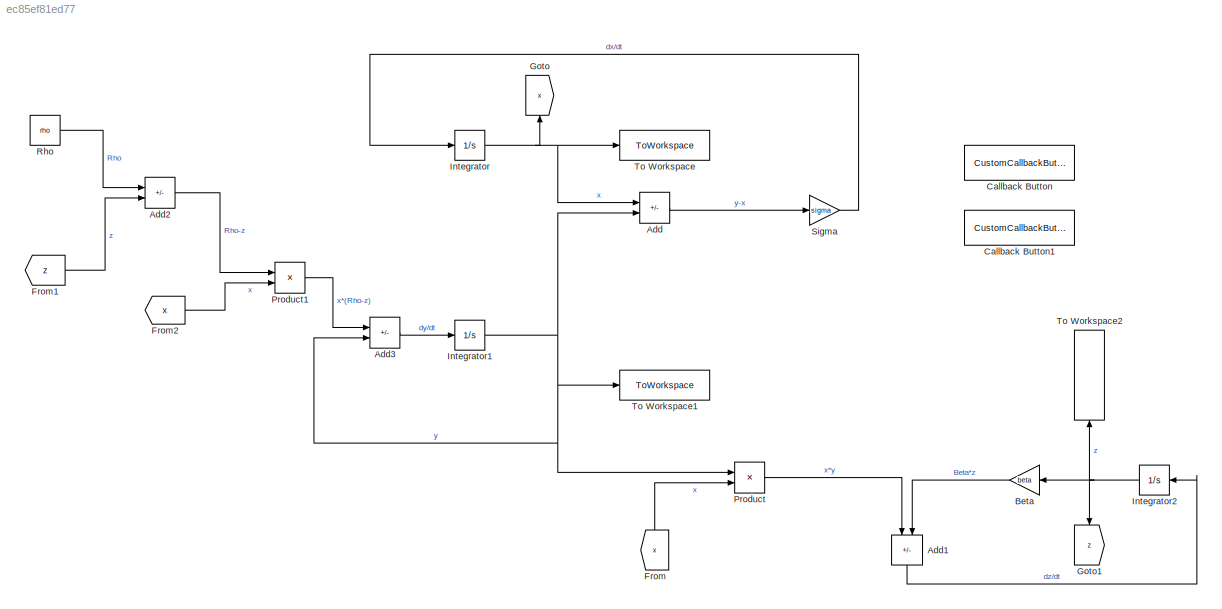
MODEL slx_ec85ef81ed77
KIND model
CONFIG AbsTol = auto
CONFIG EnableMultiTasking = off
CONFIG FixedStep = auto
CONFIG MaxStep = auto
CONFIG MinStep = auto
CONFIG RelTol = 1e-3
CONFIG SampleTimeConstraint = Unconstrained
CONFIG SolverName = VariableStepAuto
CONFIG StartTime = 0.0
CONFIG StopTime = 50
WORKSPACE source: MATLAB code (in-file)
WORKSPACE sigma = 10
WORKSPACE rho = 28
WORKSPACE beta = 8/3  (= 2.66666666667)
WORKSPACE x0 = [1,1.000001]
WORKSPACE y0 = [1,1]
WORKSPACE z0 = [1,1]
BLOCK [Sum] Add
  IconShape = rectangular
  Inputs = -+
BLOCK [Sum] Add1
  IconShape = rectangular
  Inputs = +-
  NameLocation = left
BLOCK [Sum] Add2
  IconShape = rectangular
  Inputs = +-
BLOCK [Sum] Add3
  IconShape = rectangular
  Inputs = +-
BLOCK [Gain] Beta
  Gain = beta
  NameLocation = top
BLOCK [CustomCallbackButton] Callback Button
  Configuration = {"components":[{"name":"BackgroundImageComponent","settings":{"image":{"size":[0,0],"src":"default","srcOrientation":"Right"},"position":[0,0,1,1]}},{"name":"ButtonStateComponent","settings":{"buttonType":"momentary","clickFcn":"x = out.x;\ny = out.y;\nz = out.z;\nplot3(x,y,z,LineWidth=1.5)\nxlabel('x')\nylabel('y')\nzlabel('z')","onValue":1,"position":[0,0,1,1],"pressDelay":"500","pressFcn":"","r...<+2152ch>
  CustomBackgroundColor = {"color":[0.9568627451,0.9568627451,0.9568627451],"show":true}
BLOCK [CustomCallbackButton] Callback Button1
  Configuration = {"components":[{"name":"BackgroundImageComponent","settings":{"image":{"size":[0,0],"src":"default","srcOrientation":"Right"},"position":[0,0,1,1]}},{"name":"ButtonStateComponent","settings":{"buttonType":"momentary","clickFcn":"t = linspace(0,50,length(out.x));\nplot(t,x,LineWidth=2)\nxlabel('Time (s)')\nylabel('x')\ngrid on","onValue":1,"position":[0,0,1,1],"pressDelay":"500","pressFcn":"","repe...<+2121ch>
  CustomBackgroundColor = {"color":[0.9568627451,0.9568627451,0.9568627451],"show":true}
BLOCK [From] From
  GotoTag = x
  NameLocation = right
BLOCK [From] From1
  GotoTag = z
BLOCK [From] From2
  GotoTag = x
BLOCK [Goto] Goto
  GotoTag = x
  NameLocation = right
BLOCK [Goto] Goto1
  GotoTag = z
  NameLocation = left
BLOCK [Integrator] Integrator
  InitialCondition = x0
BLOCK [Integrator] Integrator1
  InitialCondition = y0
BLOCK [Integrator] Integrator2
  InitialCondition = z0
  NameLocation = top
BLOCK [Product] Product
BLOCK [Product] Product1
BLOCK [Constant] Rho
  Value = rho
BLOCK [Gain] Sigma
  Gain = sigma
BLOCK [ToWorkspace] To Workspace
  FixptAsFi = on
  MaxDataPoints = inf
  SampleTime = -1
  VariableName = x
BLOCK [ToWorkspace] To Workspace1
  FixptAsFi = on
  MaxDataPoints = inf
  SampleTime = -1
  VariableName = y
BLOCK [ToWorkspace] To Workspace2
  FixptAsFi = on
  MaxDataPoints = inf
  NameLocation = right
  SampleTime = -1
  VariableName = z
LINE Add1:1 -> Integrator2:1
LINE Add2:1 -> Product1:1
LINE Add3:1 -> Integrator1:1
LINE Add:1 -> Sigma:1
LINE Beta:1 -> Add1:2
LINE From1:1 -> Add2:2
LINE From2:1 -> Product1:2
LINE From:1 -> Product:2
NET Integrator1:1 -> Add3:2, Add:2, Product:1, To Workspace1:1
NET Integrator2:1 -> Beta:1, Goto1:1, To Workspace2:1
NET Integrator:1 -> Add:1, Goto:1, To Workspace:1
LINE Product1:1 -> Add3:1
LINE Product:1 -> Add1:1
LINE Rho:1 -> Add2:1
LINE Sigma:1 -> Integrator:1
note: NET lines group one-source signal fan-out (src -> all destinations, sorted); 1:1 wires keep LINE
